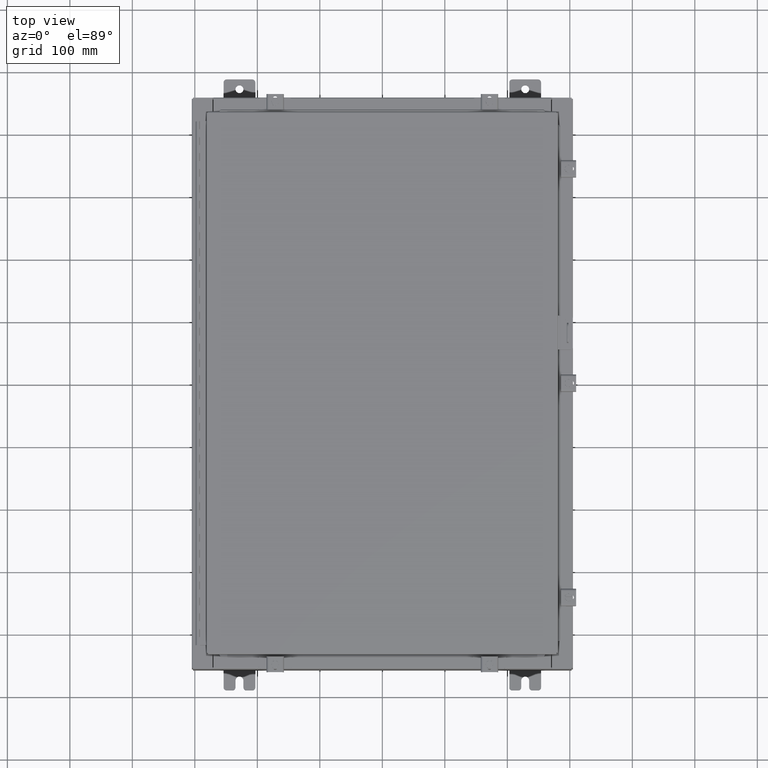
[diagram: clean part render]
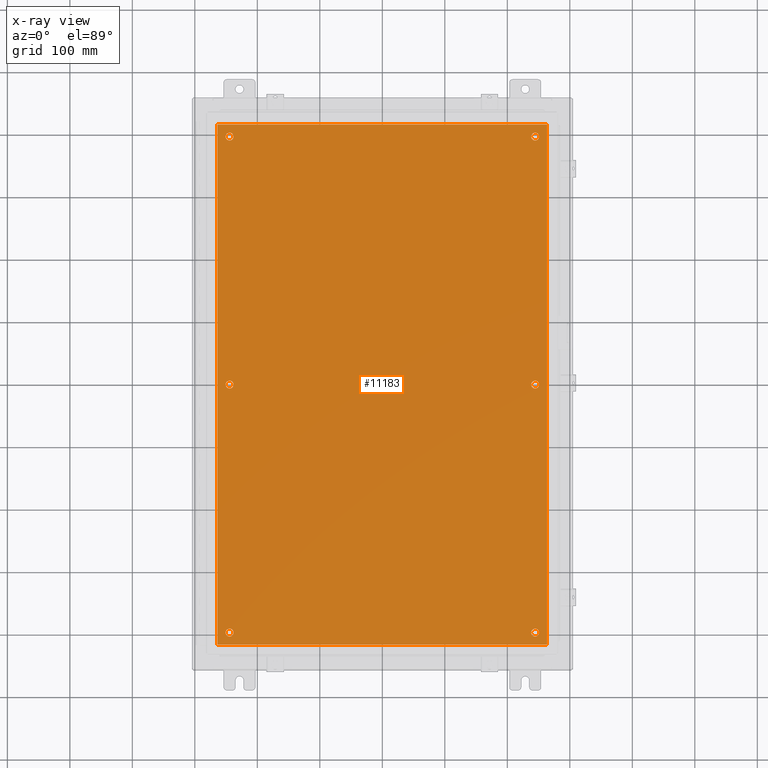
[diagram: x-ray — body ghosted, one internal face saturated and labeled with its STEP entity id]
A machine part, top view, then the same camera in x-ray: the body is ghosted and one INTERNAL B-rep face — a face not visible from any outside direction — is saturated and labeled: STEP entity #11183.
In plain terms, the highlighted planar face has unit normal (0, 0, -1).
Its self-contained STEP definition (entity closure, byte-faithful):
#6 = DIRECTION ( 'NONE',  ( -1.000000000000000000, 0.0000000000000000000, 0.0000000000000000000 ) ) ;
#13 = ORIENTED_EDGE ( 'NONE', *, *, #24025, .T. ) ;
#610 = ORIENTED_EDGE ( 'NONE', *, *, #36973, .T. ) ;
#1358 = ORIENTED_EDGE ( 'NONE', *, *, #40647, .F. ) ;
#1602 = DIRECTION ( 'NONE',  ( 0.0000000000000000000, 1.000000000000000000, 0.0000000000000000000 ) ) ;
#1632 = CARTESIAN_POINT ( 'NONE',  ( 10.38300000000000100, -16.38299999999999600, -0.1040000000000009100 ) ) ;
#1653 = CARTESIAN_POINT ( 'NONE',  ( 9.625000000000007100, -15.62500000000000200, -0.1039999999999999800 ) ) ;
#1757 = AXIS2_PLACEMENT_3D ( 'NONE', #8739, #31779, #12040 ) ;
#1855 = CARTESIAN_POINT ( 'NONE',  ( -9.625000000000005300, 2.628543122537473900E-016, -0.1039999999999999800 ) ) ;
#1884 = ORIENTED_EDGE ( 'NONE', *, *, #30283, .T. ) ;
#3102 = EDGE_LOOP ( 'NONE', ( #35016, #30173 ) ) ;
#3228 = EDGE_CURVE ( 'NONE', #29391, #13947, #24569, .T. ) ;
#3486 = CARTESIAN_POINT ( 'NONE',  ( -9.625000000000007100, 15.62500000000000200, -0.1039999999999999800 ) ) ;
#4678 = DIRECTION ( 'NONE',  ( -1.000000000000000000, 0.0000000000000000000, 0.0000000000000000000 ) ) ;
#4747 = FACE_BOUND ( 'NONE', #30020, .T. ) ;
#4976 = DIRECTION ( 'NONE',  ( -1.000000000000000000, 0.0000000000000000000, 0.0000000000000000000 ) ) ;
#5149 = DIRECTION ( 'NONE',  ( -1.000000000000000000, 0.0000000000000000000, 0.0000000000000000000 ) ) ;
#5607 = EDGE_CURVE ( 'NONE', #17872, #35659, #34167, .T. ) ;
#5819 = FACE_BOUND ( 'NONE', #14274, .T. ) ;
#5885 = VECTOR ( 'NONE', #5917, 39.37007874015748100 ) ;
#5917 = DIRECTION ( 'NONE',  ( -1.000000000000000000, -0.0000000000000000000, -0.0000000000000000000 ) ) ;
#6053 = CIRCLE ( 'NONE', #9070, 0.2499999999999998100 ) ;
#6420 = VERTEX_POINT ( 'NONE', #27009 ) ;
#6808 = DIRECTION ( 'NONE',  ( -1.000000000000000000, 0.0000000000000000000, 0.0000000000000000000 ) ) ;
#6911 = CARTESIAN_POINT ( 'NONE',  ( -9.875000000000005300, 2.934704822324310800E-016, -0.1039999999999999800 ) ) ;
#7230 = ORIENTED_EDGE ( 'NONE', *, *, #12683, .T. ) ;
#7243 = CIRCLE ( 'NONE', #29993, 0.2499999999999998100 ) ;
#8739 = CARTESIAN_POINT ( 'NONE',  ( -9.625000000000007100, -15.62500000000000200, -0.1039999999999999800 ) ) ;
#8869 = AXIS2_PLACEMENT_3D ( 'NONE', #39284, #42573, #22931 ) ;
#8886 = DIRECTION ( 'NONE',  ( 1.000000000000000000, -0.0000000000000000000, -0.0000000000000000000 ) ) ;
#9030 = EDGE_LOOP ( 'NONE', ( #1884, #13 ) ) ;
#9070 = AXIS2_PLACEMENT_3D ( 'NONE', #29266, #9561, #32557 ) ;
#9561 = DIRECTION ( 'NONE',  ( -0.0000000000000000000, -0.0000000000000000000, 1.000000000000000000 ) ) ;
#10103 = LINE ( 'NONE', #28604, #27557 ) ;
#10469 = CARTESIAN_POINT ( 'NONE',  ( -9.625000000000005300, 2.628543122537473900E-016, -0.1039999999999999800 ) ) ;
#10738 = VECTOR ( 'NONE', #1602, 39.37007874015748100 ) ;
#10751 = EDGE_LOOP ( 'NONE', ( #7230, #18190 ) ) ;
#11183 = ADVANCED_FACE ( 'NONE', ( #5819, #39762, #22306, #14585, #13562, #4747, #38754 ), #19645, .T. ) ;
#11243 = CARTESIAN_POINT ( 'NONE',  ( -9.625000000000007100, 15.62500000000000200, -0.1039999999999999800 ) ) ;
#11869 = CARTESIAN_POINT ( 'NONE',  ( 9.625000000000007100, 15.62500000000000200, -0.1039999999999999800 ) ) ;
#12040 = DIRECTION ( 'NONE',  ( -1.000000000000000000, 0.0000000000000000000, 0.0000000000000000000 ) ) ;
#12131 = CARTESIAN_POINT ( 'NONE',  ( 9.375000000000007100, -15.62500000000000200, -0.1039999999999999800 ) ) ;
#12549 = CARTESIAN_POINT ( 'NONE',  ( 10.50000000000000400, 16.38299999999999900, -0.1040000000000009100 ) ) ;
#12683 = EDGE_CURVE ( 'NONE', #13947, #29391, #29925, .T. ) ;
#13333 = CARTESIAN_POINT ( 'NONE',  ( 9.625000000000007100, 2.620299400612403500E-015, -0.1039999999999999800 ) ) ;
#13562 = FACE_BOUND ( 'NONE', #3102, .T. ) ;
#13793 = DIRECTION ( 'NONE',  ( -1.000000000000000000, 0.0000000000000000000, 0.0000000000000000000 ) ) ;
#13809 = CARTESIAN_POINT ( 'NONE',  ( -9.625000000000007100, -15.62500000000000200, -0.1039999999999999800 ) ) ;
#13854 = CARTESIAN_POINT ( 'NONE',  ( -10.38300000000000100, 16.38300000000000300, -0.1039999999999987600 ) ) ;
#13947 = VERTEX_POINT ( 'NONE', #16142 ) ;
#14232 = CIRCLE ( 'NONE', #18591, 0.2499999999999998100 ) ;
#14274 = EDGE_LOOP ( 'NONE', ( #21061, #36702 ) ) ;
#14585 = FACE_BOUND ( 'NONE', #33136, .T. ) ;
#14624 = ORIENTED_EDGE ( 'NONE', *, *, #31241, .T. ) ;
#15176 = DIRECTION ( 'NONE',  ( -1.000000000000000000, 0.0000000000000000000, 0.0000000000000000000 ) ) ;
#15566 = ORIENTED_EDGE ( 'NONE', *, *, #25039, .T. ) ;
#15639 = EDGE_CURVE ( 'NONE', #35659, #17872, #40135, .T. ) ;
#15690 = LINE ( 'NONE', #12549, #5885 ) ;
#15698 = CARTESIAN_POINT ( 'NONE',  ( 9.875000000000007100, 15.62500000000000200, -0.1039999999999999800 ) ) ;
#15936 = AXIS2_PLACEMENT_3D ( 'NONE', #1855, #24871, #5149 ) ;
#16089 = VERTEX_POINT ( 'NONE', #1632 ) ;
#16142 = CARTESIAN_POINT ( 'NONE',  ( -9.375000000000005300, 2.628543122537473900E-016, -0.1039999999999999800 ) ) ;
#16524 = AXIS2_PLACEMENT_3D ( 'NONE', #18497, #41412, #21777 ) ;
#16650 = DIRECTION ( 'NONE',  ( -1.000000000000000000, 0.0000000000000000000, 0.0000000000000000000 ) ) ;
#17119 = DIRECTION ( 'NONE',  ( -1.000000000000000000, 0.0000000000000000000, 0.0000000000000000000 ) ) ;
#17872 = VERTEX_POINT ( 'NONE', #24531 ) ;
#18190 = ORIENTED_EDGE ( 'NONE', *, *, #3228, .T. ) ;
#18497 = CARTESIAN_POINT ( 'NONE',  ( 9.625000000000007100, 15.62500000000000200, -0.1039999999999999800 ) ) ;
#18591 = AXIS2_PLACEMENT_3D ( 'NONE', #1653, #24688, #4976 ) ;
#18681 = ORIENTED_EDGE ( 'NONE', *, *, #38283, .F. ) ;
#19517 = LINE ( 'NONE', #24642, #10738 ) ;
#19645 = PLANE ( 'NONE',  #8869 ) ;
#19793 = DIRECTION ( 'NONE',  ( -0.0000000000000000000, -0.0000000000000000000, 1.000000000000000000 ) ) ;
#20121 = VECTOR ( 'NONE', #33548, 39.37007874015748100 ) ;
#20698 = CARTESIAN_POINT ( 'NONE',  ( -9.375000000000007100, 15.62500000000000200, -0.1039999999999999800 ) ) ;
#21059 = VERTEX_POINT ( 'NONE', #39814 ) ;
#21061 = ORIENTED_EDGE ( 'NONE', *, *, #15639, .T. ) ;
#21777 = DIRECTION ( 'NONE',  ( -1.000000000000000000, 0.0000000000000000000, 0.0000000000000000000 ) ) ;
#22306 = FACE_BOUND ( 'NONE', #9030, .T. ) ;
#22809 = VERTEX_POINT ( 'NONE', #26454 ) ;
#22931 = DIRECTION ( 'NONE',  ( -1.000000000000000000, 0.0000000000000000000, -0.0000000000000000000 ) ) ;
#23765 = VERTEX_POINT ( 'NONE', #25446 ) ;
#24025 = EDGE_CURVE ( 'NONE', #6420, #32491, #42096, .T. ) ;
#24456 = CIRCLE ( 'NONE', #24962, 0.2500000000000008900 ) ;
#24531 = CARTESIAN_POINT ( 'NONE',  ( 9.375000000000007100, 2.650915570591087300E-015, -0.1039999999999999800 ) ) ;
#24569 = CIRCLE ( 'NONE', #15936, 0.2500000000000008900 ) ;
#24642 = CARTESIAN_POINT ( 'NONE',  ( 10.38300000000000100, -16.38299999999999600, -0.1040000000000009100 ) ) ;
#24688 = DIRECTION ( 'NONE',  ( -0.0000000000000000000, -0.0000000000000000000, 1.000000000000000000 ) ) ;
#24864 = EDGE_CURVE ( 'NONE', #32791, #23765, #37464, .T. ) ;
#24871 = DIRECTION ( 'NONE',  ( -0.0000000000000000000, -0.0000000000000000000, 1.000000000000000000 ) ) ;
#24962 = AXIS2_PLACEMENT_3D ( 'NONE', #11243, #34236, #4678 ) ;
#25039 = EDGE_CURVE ( 'NONE', #22809, #40820, #6053, .T. ) ;
#25446 = CARTESIAN_POINT ( 'NONE',  ( 9.375000000000007100, 15.62500000000000200, -0.1039999999999999800 ) ) ;
#26228 = CARTESIAN_POINT ( 'NONE',  ( -9.875000000000007100, 15.62500000000000200, -0.1039999999999999800 ) ) ;
#26454 = CARTESIAN_POINT ( 'NONE',  ( 9.875000000000007100, -15.62500000000000200, -0.1039999999999999800 ) ) ;
#26515 = DIRECTION ( 'NONE',  ( -0.0000000000000000000, -0.0000000000000000000, 1.000000000000000000 ) ) ;
#27009 = CARTESIAN_POINT ( 'NONE',  ( -9.875000000000007100, -15.62500000000000200, -0.1039999999999999800 ) ) ;
#27317 = CARTESIAN_POINT ( 'NONE',  ( -9.375000000000007100, -15.62500000000000200, -0.1039999999999999800 ) ) ;
#27557 = VECTOR ( 'NONE', #8886, 39.37007874015748100 ) ;
#27620 = CARTESIAN_POINT ( 'NONE',  ( -10.38300000000000100, -16.38299999999999600, -0.1040000000000009100 ) ) ;
#28222 = CIRCLE ( 'NONE', #33937, 0.2500000000000008900 ) ;
#28604 = CARTESIAN_POINT ( 'NONE',  ( -10.50000000000000200, -16.38299999999999600, -0.1040000000000009100 ) ) ;
#28834 = ORIENTED_EDGE ( 'NONE', *, *, #41882, .F. ) ;
#29266 = CARTESIAN_POINT ( 'NONE',  ( 9.625000000000007100, -15.62500000000000200, -0.1039999999999999800 ) ) ;
#29391 = VERTEX_POINT ( 'NONE', #6911 ) ;
#29925 = CIRCLE ( 'NONE', #31270, 0.2500000000000008900 ) ;
#29982 = ORIENTED_EDGE ( 'NONE', *, *, #35403, .T. ) ;
#29993 = AXIS2_PLACEMENT_3D ( 'NONE', #11869, #34891, #15176 ) ;
#30020 = EDGE_LOOP ( 'NONE', ( #14624, #29982 ) ) ;
#30173 = ORIENTED_EDGE ( 'NONE', *, *, #40328, .T. ) ;
#30252 = AXIS2_PLACEMENT_3D ( 'NONE', #13809, #36809, #17119 ) ;
#30283 = EDGE_CURVE ( 'NONE', #32491, #6420, #33472, .T. ) ;
#30910 = VERTEX_POINT ( 'NONE', #39009 ) ;
#30989 = CARTESIAN_POINT ( 'NONE',  ( 9.875000000000007100, 2.620299400612403500E-015, -0.1039999999999999800 ) ) ;
#31241 = EDGE_CURVE ( 'NONE', #33061, #37743, #24456, .T. ) ;
#31270 = AXIS2_PLACEMENT_3D ( 'NONE', #10469, #33479, #13793 ) ;
#31779 = DIRECTION ( 'NONE',  ( -0.0000000000000000000, -0.0000000000000000000, 1.000000000000000000 ) ) ;
#32491 = VERTEX_POINT ( 'NONE', #27317 ) ;
#32540 = VERTEX_POINT ( 'NONE', #27620 ) ;
#32557 = DIRECTION ( 'NONE',  ( -1.000000000000000000, 0.0000000000000000000, 0.0000000000000000000 ) ) ;
#32791 = VERTEX_POINT ( 'NONE', #15698 ) ;
#33061 = VERTEX_POINT ( 'NONE', #20698 ) ;
#33136 = EDGE_LOOP ( 'NONE', ( #15566, #610 ) ) ;
#33369 = EDGE_LOOP ( 'NONE', ( #40385, #1358, #18681, #28834 ) ) ;
#33472 = CIRCLE ( 'NONE', #1757, 0.2500000000000008900 ) ;
#33479 = DIRECTION ( 'NONE',  ( -0.0000000000000000000, -0.0000000000000000000, 1.000000000000000000 ) ) ;
#33548 = DIRECTION ( 'NONE',  ( 0.0000000000000000000, -1.000000000000000000, 0.0000000000000000000 ) ) ;
#33937 = AXIS2_PLACEMENT_3D ( 'NONE', #3486, #26515, #6808 ) ;
#34167 = CIRCLE ( 'NONE', #35594, 0.2499999999999998100 ) ;
#34236 = DIRECTION ( 'NONE',  ( -0.0000000000000000000, -0.0000000000000000000, 1.000000000000000000 ) ) ;
#34891 = DIRECTION ( 'NONE',  ( -0.0000000000000000000, -0.0000000000000000000, 1.000000000000000000 ) ) ;
#35016 = ORIENTED_EDGE ( 'NONE', *, *, #24864, .T. ) ;
#35403 = EDGE_CURVE ( 'NONE', #37743, #33061, #28222, .T. ) ;
#35594 = AXIS2_PLACEMENT_3D ( 'NONE', #39456, #19793, #6 ) ;
#35659 = VERTEX_POINT ( 'NONE', #30989 ) ;
#36345 = DIRECTION ( 'NONE',  ( -0.0000000000000000000, -0.0000000000000000000, 1.000000000000000000 ) ) ;
#36702 = ORIENTED_EDGE ( 'NONE', *, *, #5607, .T. ) ;
#36809 = DIRECTION ( 'NONE',  ( -0.0000000000000000000, -0.0000000000000000000, 1.000000000000000000 ) ) ;
#36874 = AXIS2_PLACEMENT_3D ( 'NONE', #13333, #36345, #16650 ) ;
#36973 = EDGE_CURVE ( 'NONE', #40820, #22809, #14232, .T. ) ;
#37060 = EDGE_CURVE ( 'NONE', #32540, #16089, #10103, .T. ) ;
#37464 = CIRCLE ( 'NONE', #16524, 0.2499999999999998100 ) ;
#37589 = LINE ( 'NONE', #13854, #20121 ) ;
#37743 = VERTEX_POINT ( 'NONE', #26228 ) ;
#38283 = EDGE_CURVE ( 'NONE', #21059, #30910, #15690, .T. ) ;
#38754 = FACE_OUTER_BOUND ( 'NONE', #33369, .T. ) ;
#39009 = CARTESIAN_POINT ( 'NONE',  ( -10.38300000000000100, 16.38300000000000300, -0.1039999999999987600 ) ) ;
#39284 = CARTESIAN_POINT ( 'NONE',  ( 0.0000000000000000000, 0.0000000000000000000, -0.1039999999999999800 ) ) ;
#39456 = CARTESIAN_POINT ( 'NONE',  ( 9.625000000000007100, 2.620299400612403500E-015, -0.1039999999999999800 ) ) ;
#39762 = FACE_BOUND ( 'NONE', #10751, .T. ) ;
#39814 = CARTESIAN_POINT ( 'NONE',  ( 10.38300000000000100, 16.38300000000000300, -0.1040000000000009100 ) ) ;
#40135 = CIRCLE ( 'NONE', #36874, 0.2499999999999998100 ) ;
#40328 = EDGE_CURVE ( 'NONE', #23765, #32791, #7243, .T. ) ;
#40385 = ORIENTED_EDGE ( 'NONE', *, *, #37060, .F. ) ;
#40647 = EDGE_CURVE ( 'NONE', #30910, #32540, #37589, .T. ) ;
#40820 = VERTEX_POINT ( 'NONE', #12131 ) ;
#41412 = DIRECTION ( 'NONE',  ( -0.0000000000000000000, -0.0000000000000000000, 1.000000000000000000 ) ) ;
#41882 = EDGE_CURVE ( 'NONE', #16089, #21059, #19517, .T. ) ;
#42096 = CIRCLE ( 'NONE', #30252, 0.2500000000000008900 ) ;
#42573 = DIRECTION ( 'NONE',  ( 0.0000000000000000000, 0.0000000000000000000, -1.000000000000000000 ) ) ;